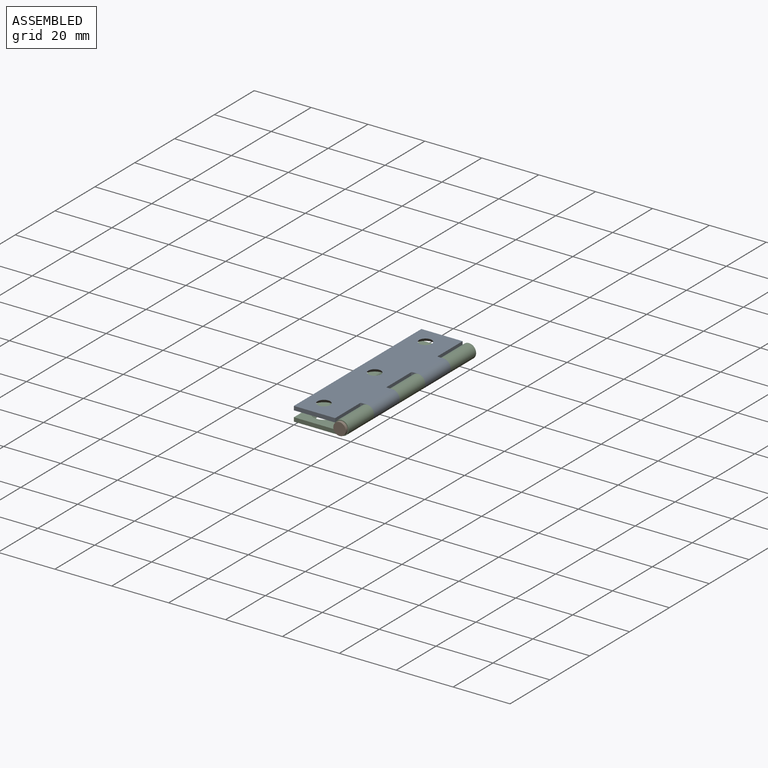
[diagram: assembled view]
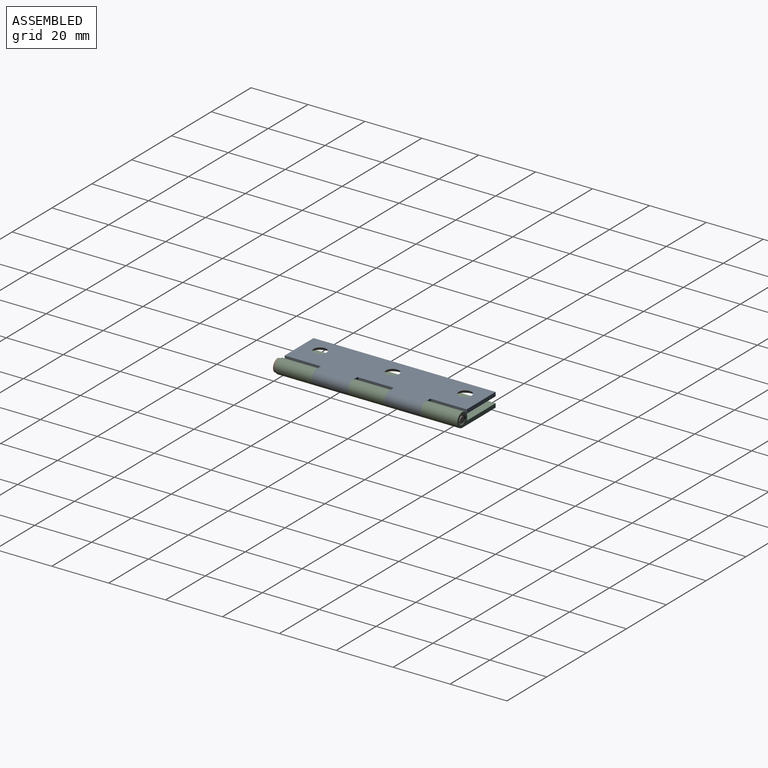
[diagram: assembled view, second angle]
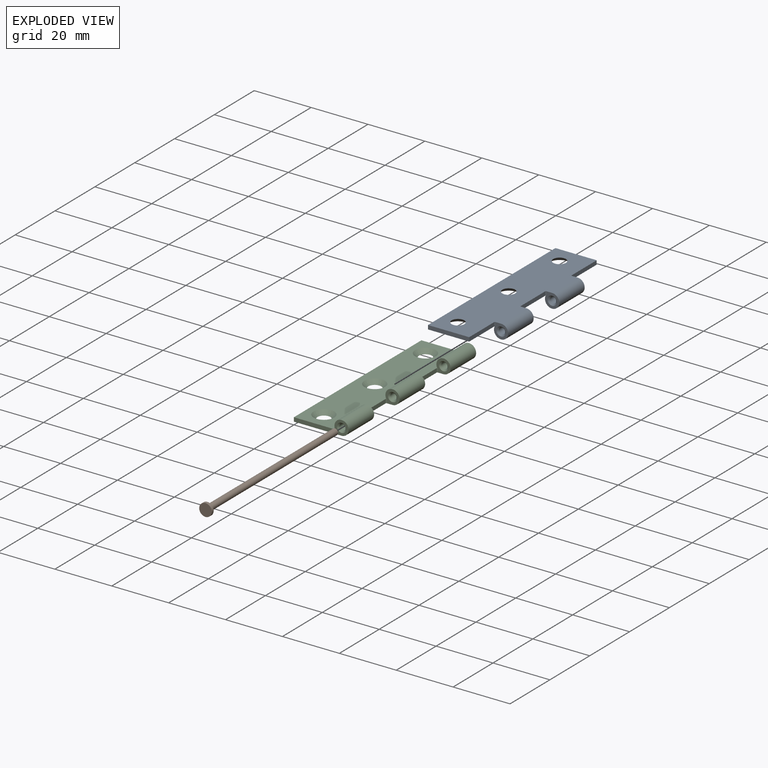
[diagram: exploded view]
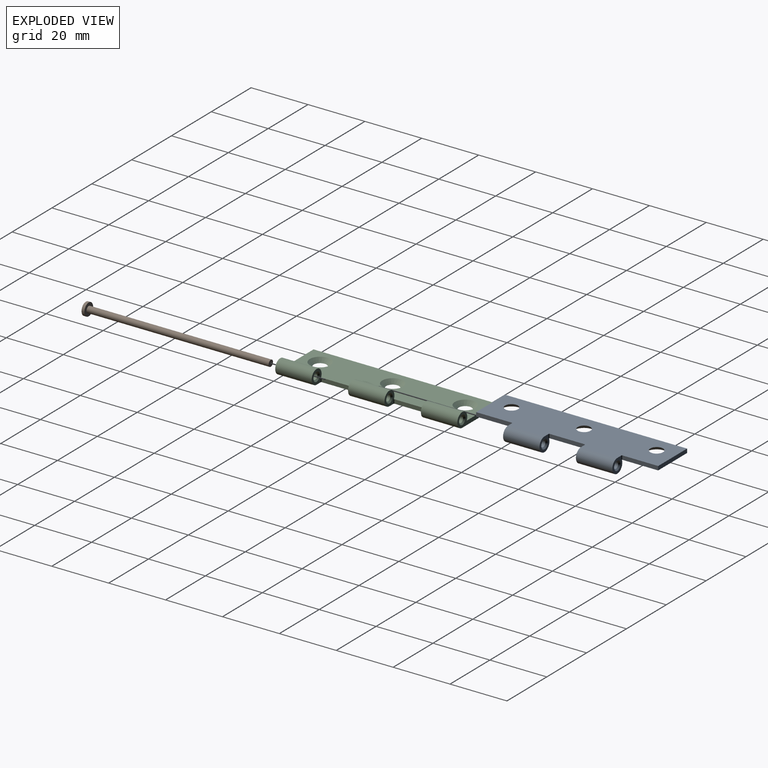
[diagram: exploded view, second angle]
ASSEMBLY  parts=3 mates=2
PART A: 27 faces, bbox 19.2x64x5 mm
  f0: plane 12.3x1.4mm, normal (-1,0,0), area 17.2mm2, adj f6,f7,f23,f26
  f1: plane 12.55x1.4mm, normal (-1,0,0), area 17.6mm2, adj f2,f6,f7,f25
  f2: plane 14.5x1.4mm, normal (0,-1,0), area 20.3mm2, adj f1,f3,f6,f7
  f3: plane 64x1.4mm, normal (1,0,0), area 89.6mm2, adj f2,f4,f6,f7
  f4: plane 14.5x1.4mm, normal (0,1,0), area 20.3mm2, adj f3,f5,f6,f7
  f5: plane 12.55x1.4mm, normal (-1,0,0), area 17.6mm2, adj f4,f6,f7,f24
  f6: plane 64x14.75mm, normal (0,0,1), area 802.5mm2, adj f0,f1,f2,f3,f4,f5,f8,f10
  f7: plane 64x16.75mm, normal (0,0,-1), area 937.8mm2, adj f0,f1,f2,f3,f4,f5,f8,f10
  f8: cylinder r=2.5mm len=12.8mm, axis (0,-1,0), area 165.4mm2, adj f6,f7,f10,f11
  f9: cylinder r=1.1mm len=11.8mm, axis (0,-1,0), area 81.6mm2, adj f21,f22
  f10: plane 5x5mm, normal (0,1,0), area 12.1mm2, adj f6,f7,f8,f21,f26
  f11: plane 5x5mm, normal (0,-1,0), area 12.1mm2, adj f6,f7,f8,f22,f25
  f12: cylinder r=2.5mm len=12.8mm, axis (0,-1,0), area 165.4mm2, adj f6,f7,f14,f15
  f13: cylinder r=1.1mm len=11.8mm, axis (0,-1,0), area 81.6mm2, adj f19,f20
  f14: plane 5x5mm, normal (0,1,0), area 12.1mm2, adj f6,f7,f12,f19,f24
  f15: plane 5x5mm, normal (0,-1,0), area 12.1mm2, adj f6,f7,f12,f20,f23
  f16: cone r=2.15mm half-angle=45deg, axis (0,0,1), area 36.7mm2, adj f6,f7
  f17: cone r=2.15mm half-angle=45deg, axis (0,0,1), area 36.7mm2, adj f6,f7
  f18: cone r=2.15mm half-angle=45deg, axis (0,0,1), area 36.7mm2, adj f6,f7
  f19: cone r=1.6mm half-angle=45deg, axis (0,1,0), area 6mm2, adj f13,f14
  f20: cone r=1.1mm half-angle=45deg, axis (0,-1,0), area 6mm2, adj f13,f15
  f21: cone r=1.6mm half-angle=45deg, axis (0,1,0), area 6mm2, adj f9,f10
  f22: cone r=1.1mm half-angle=45deg, axis (0,-1,0), area 6mm2, adj f9,f11
  f23: cylinder r=0.25mm len=1.4mm, axis (0,0,-1), area 0.5mm2, adj f0,f6,f7,f15
  f24: cylinder r=0.25mm len=1.4mm, axis (0,0,1), area 0.5mm2, adj f5,f6,f7,f14
  f25: cylinder r=0.25mm len=1.4mm, axis (0,0,-1), area 0.5mm2, adj f1,f6,f7,f11
  f26: cylinder r=0.25mm len=1.4mm, axis (0,0,1), area 0.5mm2, adj f0,f6,f7,f10
PART B: 5 faces, bbox 4.4x4.4x65 mm
  f0: cylinder r=1.1mm len=64mm, axis (0,0,-1), area 442.3mm2, adj f1,f4
  f1: plane 2.2x2.2mm, normal (0,0,1), area 3.8mm2, adj f0
  f2: cylinder r=2.2mm len=4.4mm, axis (0,0,1), area 13.8mm2, adj f3,f4
  f3: plane 4.4x4.4mm, normal (0,0,-1), area 15.2mm2, adj f2
  f4: plane 4.4x4.4mm, normal (0,0,1), area 11.4mm2, adj f0,f2
PART C: 30 faces, bbox 19.2x64x5 mm
  f0: plane 12.3x1.4mm, normal (1,0,0), area 17.2mm2, adj f5,f6,f26,f28
  f1: plane 12.3x1.4mm, normal (1,0,0), area 17.2mm2, adj f5,f6,f27,f29
  f2: plane 19.25x5mm, normal (0,1,0), area 32.8mm2, adj f3,f5,f6,f18,f20
  f3: plane 64x1.4mm, normal (-1,0,0), area 89.6mm2, adj f2,f4,f5,f6
  f4: plane 19.25x5mm, normal (0,-1,0), area 32.8mm2, adj f3,f5,f6,f10,f23
  f5: plane 64x14.75mm, normal (0,0,1), area 802.5mm2, adj f0,f1,f2,f3,f4,f7,f8,f9
  f6: plane 64x16.75mm, normal (0,0,-1), area 966.5mm2, adj f0,f1,f2,f3,f4,f7,f8,f9
  f7: cone r=2.15mm half-angle=45deg, axis (0,0,1), area 36.7mm2, adj f5,f6
  f8: cone r=2.15mm half-angle=45deg, axis (0,0,1), area 36.7mm2, adj f5,f6
  f9: cone r=2.15mm half-angle=45deg, axis (0,0,1), area 36.7mm2, adj f5,f6
  f10: cylinder r=2.5mm len=12.8mm, axis (0,-1,0), area 165.4mm2, adj f4,f5,f6,f12
  f11: cylinder r=1.1mm len=11.8mm, axis (0,-1,0), area 81.6mm2, adj f22,f23
  f12: plane 5x5mm, normal (0,1,0), area 12.1mm2, adj f5,f6,f10,f22,f29
  f13: cylinder r=1.1mm len=11.8mm, axis (0,-1,0), area 81.6mm2, adj f21,f24
  f14: cylinder r=2.5mm len=12.8mm, axis (0,-1,0), area 165.4mm2, adj f5,f6,f15,f16
  f15: plane 5x5mm, normal (0,1,0), area 12.1mm2, adj f5,f6,f14,f21,f28
  f16: plane 5x5mm, normal (0,-1,0), area 12.1mm2, adj f5,f6,f14,f24,f27
  f17: cylinder r=1.1mm len=11.8mm, axis (0,-1,0), area 81.6mm2, adj f20,f25
  f18: cylinder r=2.5mm len=12.8mm, axis (0,-1,0), area 165.4mm2, adj f2,f5,f6,f19
  f19: plane 5x5mm, normal (0,-1,0), area 12.1mm2, adj f5,f6,f18,f25,f26
  f20: cone r=1.6mm half-angle=45deg, axis (0,1,0), area 6mm2, adj f2,f17
  f21: cone r=1.6mm half-angle=45deg, axis (0,1,0), area 6mm2, adj f13,f15
  f22: cone r=1.6mm half-angle=45deg, axis (0,1,0), area 6mm2, adj f11,f12
  f23: cone r=1.1mm half-angle=45deg, axis (0,-1,0), area 6mm2, adj f4,f11
  f24: cone r=1.1mm half-angle=45deg, axis (0,-1,0), area 6mm2, adj f13,f16
  f25: cone r=1.1mm half-angle=45deg, axis (0,-1,0), area 6mm2, adj f17,f19
  f26: cylinder r=0.25mm len=1.4mm, axis (0,0,1), area 0.5mm2, adj f0,f5,f6,f19
  f27: cylinder r=0.25mm len=1.4mm, axis (0,0,1), area 0.5mm2, adj f1,f5,f6,f16
  f28: cylinder r=0.25mm len=1.4mm, axis (0,0,-1), area 0.5mm2, adj f0,f5,f6,f15
  f29: cylinder r=0.25mm len=1.4mm, axis (0,0,1), area 0.5mm2, adj f1,f5,f6,f12
PLACE A rot(axis=(0,-1,0),180deg) t=(14.5,0,5)mm
PLACE B rot(axis=(-1,0,0),90deg) t=(16.74,0,2.5)mm
PLACE C at identity
MATE slider B.f0 <-> C.f10  axis (0,1,0) through (16.74,64,2.5)mm
MATE revolute C.f10 <-> A.f8  axis (0,-1,0) through (16.74,51.2,2.5)mm
